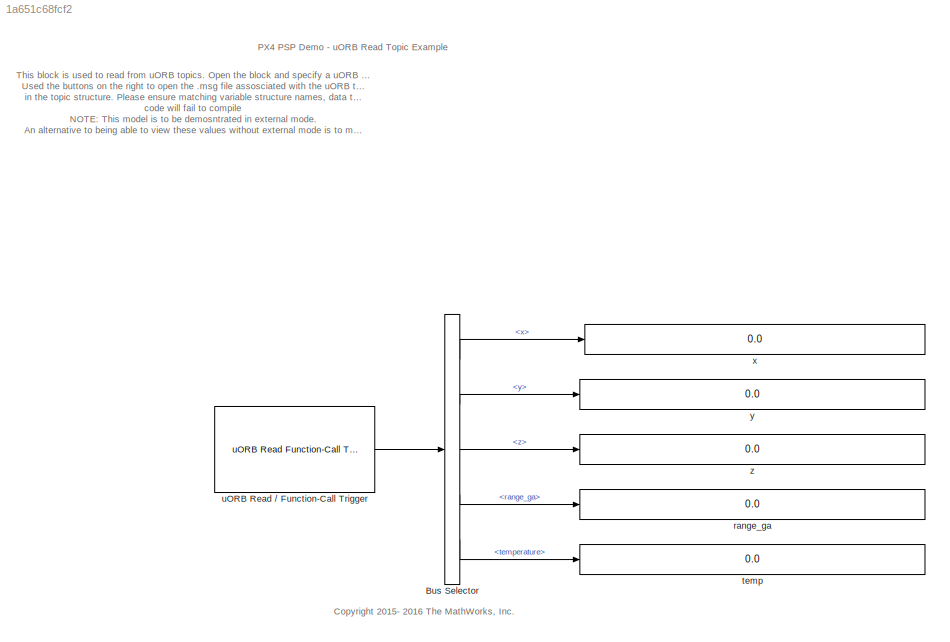
MODEL slx_1a651c68fcf2
KIND model
CONFIG AbsTol = auto
CONFIG EnableMultiTasking = on
CONFIG FixedStep = 0.01
CONFIG MaxStep = auto
CONFIG MinStep = auto
CONFIG RelTol = 1e-3
CONFIG SampleTimeConstraint = Unconstrained
CONFIG Solver = FixedStepDiscrete
CONFIG SolverName = FixedStepDiscrete
CONFIG StartTime = 0.0
CONFIG StopTime = inf
BLOCK [BusSelector] Bus Selector
  OutputAsBus = off
  OutputSignals = x,y,z,range_ga,temperature
  Ports = [1, 5]
BLOCK [Display] range_ga
  Decimation = 1
  Ports = [1]
BLOCK [Display] temp
  Decimation = 1
  Ports = [1]
BLOCK [Reference] uORB Read // Function-Call Trigger  REF=pixhawk_slib_uORB_RW/uORB Read Function-Call Trigger
  Ports = [0, 1]
  SourceBlock = pixhawk_slib_uORB_RW/uORB Read Function-Call Trigger
  SourceProductName = Pixhawk Target Blocks
BLOCK [Display] x
  Decimation = 1
  Ports = [1]
BLOCK [Display] y
  Decimation = 1
  Ports = [1]
BLOCK [Display] z
  Decimation = 1
  Ports = [1]
ANNOTATION (root): PX4 PSP Demo - uORB Read Topic Example
ANNOTATION (root): This block is used to read from uORB topics. Open the block and specify a uORB name such as 'sensor_combined'. Used the buttons on the right to open the .msg file assosciated with the uORB topic to see the variables in the topic structure. Please ensure matching variable structure names, data types and dimension or the generated code will fail to compile NOTE: This model is to be demosntrated in e...<+180ch>
ANNOTATION (root): <copyright redacted>
LINE Bus Selector:1 -> x:1
LINE Bus Selector:2 -> y:1
LINE Bus Selector:3 -> z:1
LINE Bus Selector:4 -> range_ga:1
LINE Bus Selector:5 -> temp:1
LINE uORB Read // Function-Call Trigger:1 -> Bus Selector:1
